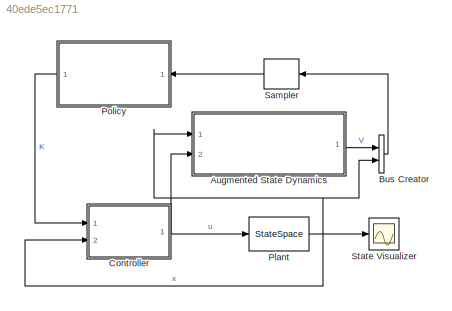
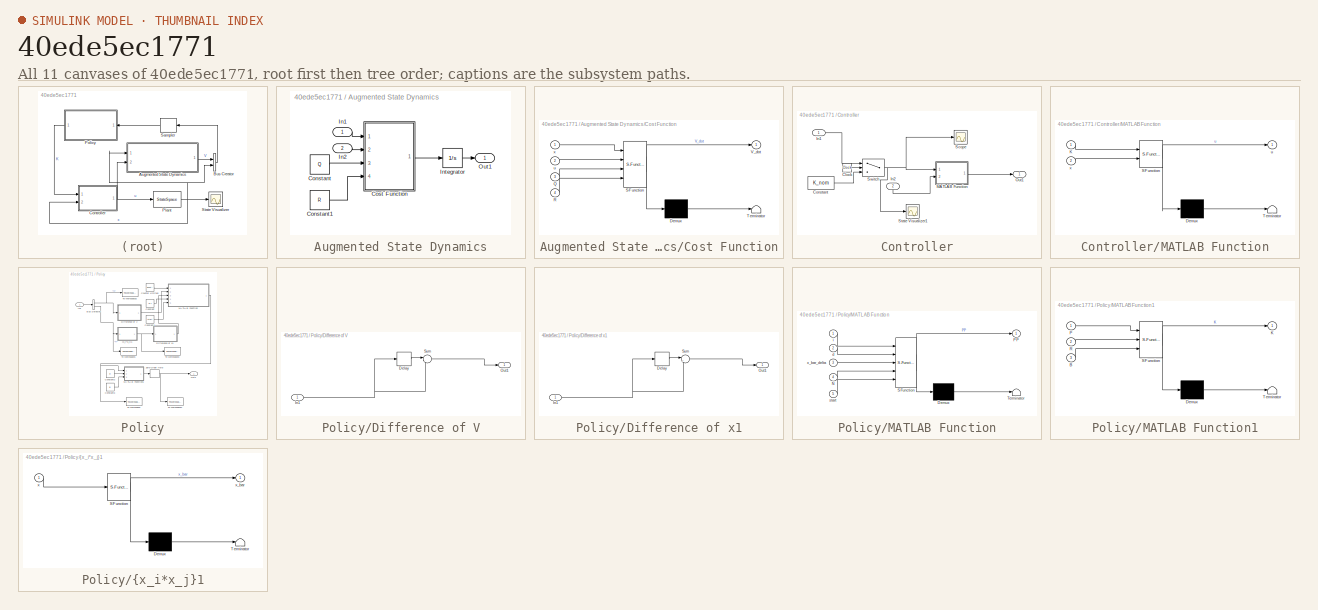
[diagram: thumbnail index - all 11 canvases of the model, root first then tree order]
MODEL slx_40ede5ec1771
KIND model
CONFIG InitFcn = initializer
BLOCK [SubSystem] Augmented State Dynamics
  Ports = [2, 1]
  RequestExecContextInheritance = off
BLOCK [Constant] Augmented State Dynamics/Constant
  Value = Q
BLOCK [Constant] Augmented State Dynamics/Constant1
  Value = R
BLOCK [SubSystem] Augmented State Dynamics/Cost Function
  ErrorFcn = Stateflow.Translate.translate
  PermitHierarchicalResolution = ExplicitOnly
  Ports = [4, 1]
  RequestExecContextInheritance = off
  SFBlockType = MATLAB Function
  TreatAsAtomicUnit = on
BLOCK [Demux] Augmented State Dynamics/Cost Function/ Demux 
  Outputs = 1
  Ports = [1, 1]
BLOCK [S-Function] Augmented State Dynamics/Cost Function/ SFunction 
  EnableBusSupport = on
  FunctionName = sf_sfun
  PortCounts = [4 2]
  Ports = [4, 2]
  Tag = Stateflow S-Function Vrabie 1
BLOCK [Terminator] Augmented State Dynamics/Cost Function/ Terminator 
BLOCK [Inport] Augmented State Dynamics/Cost Function/Q
  IconDisplay = Port number
  Port = 3
BLOCK [Inport] Augmented State Dynamics/Cost Function/R
  IconDisplay = Port number
  Port = 4
BLOCK [Outport] Augmented State Dynamics/Cost Function/V_dot
  IconDisplay = Port number
BLOCK [Inport] Augmented State Dynamics/Cost Function/u
  IconDisplay = Port number
  Port = 2
BLOCK [Inport] Augmented State Dynamics/Cost Function/x
  IconDisplay = Port number
BLOCK [Inport] Augmented State Dynamics/In1
  IconDisplay = Port number
BLOCK [Inport] Augmented State Dynamics/In2
  IconDisplay = Port number
  Port = 2
BLOCK [Integrator] Augmented State Dynamics/Integrator
  Ports = [1, 1]
BLOCK [Outport] Augmented State Dynamics/Out1
  IconDisplay = Port number
BLOCK [BusCreator] Bus Creator
  DisplayOption = bar
  Inputs = 2
  Ports = [2, 1]
BLOCK [SubSystem] Controller
  Ports = [2, 1]
  RequestExecContextInheritance = off
BLOCK [Clock] Controller/Clock
BLOCK [Constant] Controller/Constant
  Value = K_nom
BLOCK [Inport] Controller/In1
  IconDisplay = Port number
BLOCK [Inport] Controller/In2
  IconDisplay = Port number
  Port = 2
BLOCK [SubSystem] Controller/MATLAB Function
  ErrorFcn = Stateflow.Translate.translate
  PermitHierarchicalResolution = ExplicitOnly
  Ports = [2, 1]
  RequestExecContextInheritance = off
  SFBlockType = MATLAB Function
  TreatAsAtomicUnit = on
BLOCK [Demux] Controller/MATLAB Function/ Demux 
  Outputs = 1
  Ports = [1, 1]
BLOCK [S-Function] Controller/MATLAB Function/ SFunction 
  EnableBusSupport = on
  FunctionName = sf_sfun
  PortCounts = [2 2]
  Ports = [2, 2]
  Tag = Stateflow S-Function Vrabie 5
BLOCK [Terminator] Controller/MATLAB Function/ Terminator 
BLOCK [Inport] Controller/MATLAB Function/K
  IconDisplay = Port number
BLOCK [Outport] Controller/MATLAB Function/u
  IconDisplay = Port number
BLOCK [Inport] Controller/MATLAB Function/x
  IconDisplay = Port number
  Port = 2
BLOCK [Outport] Controller/Out1
  IconDisplay = Port number
BLOCK [Scope] Controller/Scope
  Floating = off
  NumInputPorts = 1
  Ports = [1]
  SaveName = ScopeData8
  ShowLegends = off
BLOCK [Scope] Controller/State Visualizer1
  DataFormat = StructureWithTime
  Floating = off
  MaxDataPoints = 50000
  NumInputPorts = 1
  Ports = [1]
  SaveName = xData2
  SaveToWorkspace = on
  ShowLegends = off
  TimeRange = 1
  YMax = 0.15
  YMin = -0.15
  ZoomMode = xonly
BLOCK [Switch] Controller/Switch
  Criteria = u2 > Threshold
  InputSameDT = off
  SaturateOnIntegerOverflow = off
  Threshold = N*T
BLOCK [StateSpace] Plant
  A = A
  B = B
  C = C
  D = D
  Ports = [1, 1]
  X0 = x0
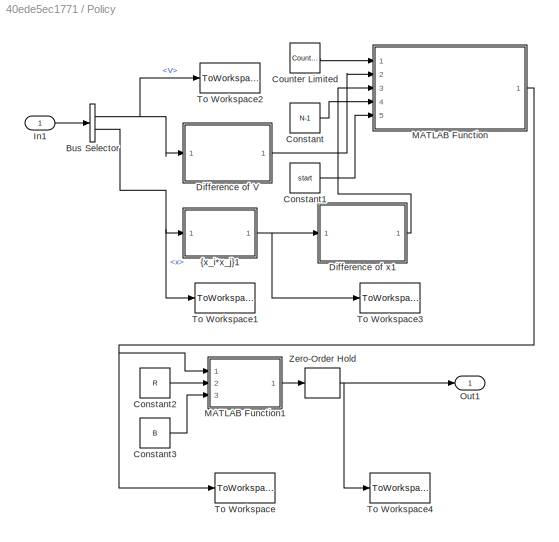
BLOCK [SubSystem] Policy
  Ports = [1, 1]
  RequestExecContextInheritance = off
BLOCK [BusSelector] Policy/Bus Selector
  OutputSignals = V,x
  Ports = [1, 2]
BLOCK [Constant] Policy/Constant
  Value = N-1
BLOCK [Constant] Policy/Constant1
  Value = start
BLOCK [Constant] Policy/Constant2
  Value = R
BLOCK [Constant] Policy/Constant3
  Value = B
BLOCK [Reference] Policy/Counter Limited  REF=simulink/Sources/Counter
Limited
  Ports = [0, 1]
  SourceBlock = simulink/Sources/Counter\nLimited
  SourceType = Counter Limited
  tsamp = -1
  uplimit = N-1
BLOCK [SubSystem] Policy/Difference of V
  Ports = [1, 1]
  RequestExecContextInheritance = off
BLOCK [Delay] Policy/Difference of V/Delay
  DelayLength = 1
  InitialCondition = 0
  InputPortMap = u0
  Ports = [1, 1]
BLOCK [Inport] Policy/Difference of V/In1
  IconDisplay = Port number
BLOCK [Outport] Policy/Difference of V/Out1
  IconDisplay = Port number
BLOCK [Sum] Policy/Difference of V/Sum
  IconShape = round
  InputSameDT = off
  Inputs = |-+
  OutDataTypeStr = Inherit: Inherit via internal rule
  Ports = [2, 1]
  SaturateOnIntegerOverflow = off
BLOCK [SubSystem] Policy/Difference of x1
  Ports = [1, 1]
  RequestExecContextInheritance = off
BLOCK [Delay] Policy/Difference of x1/Delay
  DelayLength = 1
  InitialCondition = 0
  InputPortMap = u0
  Ports = [1, 1]
BLOCK [Inport] Policy/Difference of x1/In1
  IconDisplay = Port number
BLOCK [Outport] Policy/Difference of x1/Out1
  IconDisplay = Port number
BLOCK [Sum] Policy/Difference of x1/Sum
  IconShape = round
  InputSameDT = off
  Inputs = |+-
  OutDataTypeStr = Inherit: Inherit via internal rule
  Ports = [2, 1]
  SaturateOnIntegerOverflow = off
BLOCK [Inport] Policy/In1
  IconDisplay = Port number
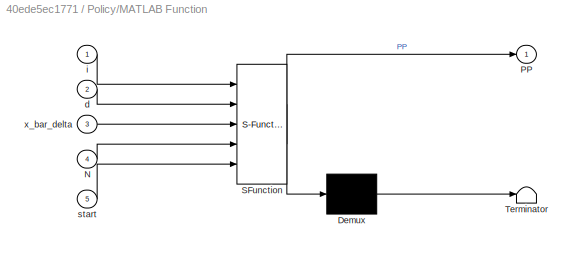
BLOCK [SubSystem] Policy/MATLAB Function
  ErrorFcn = Stateflow.Translate.translate
  PermitHierarchicalResolution = ExplicitOnly
  Ports = [5, 1]
  RequestExecContextInheritance = off
  SFBlockType = MATLAB Function
  TreatAsAtomicUnit = on
  VariantControl = Variant1
BLOCK [Demux] Policy/MATLAB Function/ Demux 
  Outputs = 1
  Ports = [1, 1]
BLOCK [S-Function] Policy/MATLAB Function/ SFunction 
  EnableBusSupport = on
  FunctionName = sf_sfun
  PortCounts = [5 2]
  Ports = [5, 2]
  Tag = Stateflow S-Function Vrabie 4
BLOCK [Terminator] Policy/MATLAB Function/ Terminator 
BLOCK [Inport] Policy/MATLAB Function/N
  IconDisplay = Port number
  Port = 4
BLOCK [Outport] Policy/MATLAB Function/PP
  IconDisplay = Port number
BLOCK [Inport] Policy/MATLAB Function/d
  IconDisplay = Port number
  Port = 2
BLOCK [Inport] Policy/MATLAB Function/i
  IconDisplay = Port number
BLOCK [Inport] Policy/MATLAB Function/start
  IconDisplay = Port number
  Port = 5
BLOCK [Inport] Policy/MATLAB Function/x_bar_delta
  IconDisplay = Port number
  Port = 3
BLOCK [SubSystem] Policy/MATLAB Function1
  ErrorFcn = Stateflow.Translate.translate
  PermitHierarchicalResolution = ExplicitOnly
  Ports = [3, 1]
  RequestExecContextInheritance = off
  SFBlockType = MATLAB Function
  TreatAsAtomicUnit = on
BLOCK [Demux] Policy/MATLAB Function1/ Demux 
  Outputs = 1
  Ports = [1, 1]
BLOCK [S-Function] Policy/MATLAB Function1/ SFunction 
  EnableBusSupport = on
  FunctionName = sf_sfun
  PortCounts = [3 2]
  Ports = [3, 2]
  Tag = Stateflow S-Function Vrabie 2
BLOCK [Terminator] Policy/MATLAB Function1/ Terminator 
BLOCK [Inport] Policy/MATLAB Function1/B
  IconDisplay = Port number
  Port = 3
BLOCK [Outport] Policy/MATLAB Function1/K
  IconDisplay = Port number
BLOCK [Inport] Policy/MATLAB Function1/P
  IconDisplay = Port number
BLOCK [Inport] Policy/MATLAB Function1/R
  IconDisplay = Port number
  Port = 2
BLOCK [Outport] Policy/Out1
  IconDisplay = Port number
BLOCK [ToWorkspace] Policy/To Workspace
  FixptAsFi = on
  MaxDataPoints = inf
  Ports = [1]
  SampleTime = -1
  Save2DSignal = 3-D array (concatenate along third dimension)
  SaveFormat = Timeseries
  VariableName = P_sim
BLOCK [ToWorkspace] Policy/To Workspace1
  FixptAsFi = on
  MaxDataPoints = inf
  Ports = [1]
  SampleTime = -1
  Save2DSignal = 3-D array (concatenate along third dimension)
  SaveFormat = Timeseries
  VariableName = x_sim
BLOCK [ToWorkspace] Policy/To Workspace2
  FixptAsFi = on
  MaxDataPoints = inf
  Ports = [1]
  SampleTime = -1
  Save2DSignal = 3-D array (concatenate along third dimension)
  SaveFormat = Timeseries
  VariableName = V_sim
BLOCK [ToWorkspace] Policy/To Workspace3
  FixptAsFi = on
  MaxDataPoints = inf
  Ports = [1]
  SampleTime = -1
  Save2DSignal = 3-D array (concatenate along third dimension)
  SaveFormat = Timeseries
  VariableName = x_bar_sim
BLOCK [ToWorkspace] Policy/To Workspace4
  FixptAsFi = on
  MaxDataPoints = inf
  Ports = [1]
  SampleTime = -1
  Save2DSignal = 3-D array (concatenate along third dimension)
  SaveFormat = Timeseries
  VariableName = K_sim
BLOCK [ZeroOrderHold] Policy/Zero-Order Hold
  SampleTime = N*T
BLOCK [SubSystem] Policy/{x_i*x_j}1
  ErrorFcn = Stateflow.Translate.translate
  PermitHierarchicalResolution = ExplicitOnly
  Ports = [1, 1]
  RequestExecContextInheritance = off
  SFBlockType = MATLAB Function
  TreatAsAtomicUnit = on
BLOCK [Demux] Policy/{x_i*x_j}1/ Demux 
  Outputs = 1
  Ports = [1, 1]
BLOCK [S-Function] Policy/{x_i*x_j}1/ SFunction 
  EnableBusSupport = on
  FunctionName = sf_sfun
  PortCounts = [1 2]
  Ports = [1, 2]
  Tag = Stateflow S-Function Vrabie 3
BLOCK [Terminator] Policy/{x_i*x_j}1/ Terminator 
BLOCK [Inport] Policy/{x_i*x_j}1/x
  IconDisplay = Port number
BLOCK [Outport] Policy/{x_i*x_j}1/x_bar
  IconDisplay = Port number
BLOCK [ZeroOrderHold] Sampler
  SampleTime = T
BLOCK [Scope] State Visualizer
  Floating = off
  MaxDataPoints = 50000
  NumInputPorts = 1
  Ports = [1]
  SaveName = xData
  SaveToWorkspace = on
  ShowLegends = off
  TimeRange = 1
  YMax = 0.15
  YMin = -0.15
  ZoomMode = xonly
LINE Augmented State Dynamics/Constant1:1 -> Augmented State Dynamics/Cost Function:4
LINE Augmented State Dynamics/Constant:1 -> Augmented State Dynamics/Cost Function:3
LINE Augmented State Dynamics/Cost Function:1 -> Augmented State Dynamics/Integrator:1
LINE Augmented State Dynamics/In1:1 -> Augmented State Dynamics/Cost Function:1
LINE Augmented State Dynamics/In2:1 -> Augmented State Dynamics/Cost Function:2
LINE Augmented State Dynamics/Integrator:1 -> Augmented State Dynamics/Out1:1
LINE Augmented State Dynamics:1 -> Bus Creator:1
LINE Bus Creator:1 -> Sampler:1
LINE Controller/Clock:1 -> Controller/Switch:2
LINE Controller/Constant:1 -> Controller/Switch:3
LINE Controller/In1:1 -> Controller/Switch:1
LINE Controller/In2:1 -> Controller/MATLAB Function:2
LINE Controller/MATLAB Function:1 -> Controller/Out1:1
NET Controller/Switch:1 -> Controller/MATLAB Function:1, Controller/Scope:1, Controller/State Visualizer1:1
NET Controller:1 -> Augmented State Dynamics:2, Plant:1
NET Plant:1 -> Augmented State Dynamics:1, Bus Creator:2, Controller:2, State Visualizer:1
NET Policy/Bus Selector:1 -> Policy/Difference of V:1, Policy/To Workspace2:1
NET Policy/Bus Selector:2 -> Policy/To Workspace1:1, Policy/{x_i*x_j}1:1
LINE Policy/Constant1:1 -> Policy/MATLAB Function:5
LINE Policy/Constant2:1 -> Policy/MATLAB Function1:2
LINE Policy/Constant3:1 -> Policy/MATLAB Function1:3
LINE Policy/Constant:1 -> Policy/MATLAB Function:4
LINE Policy/Counter Limited:1 -> Policy/MATLAB Function:1
LINE Policy/Difference of V/Delay:1 -> Policy/Difference of V/Sum:1
NET Policy/Difference of V/In1:1 -> Policy/Difference of V/Delay:1, Policy/Difference of V/Sum:2
LINE Policy/Difference of V/Sum:1 -> Policy/Difference of V/Out1:1
LINE Policy/Difference of V:1 -> Policy/MATLAB Function:2
LINE Policy/Difference of x1/Delay:1 -> Policy/Difference of x1/Sum:1
NET Policy/Difference of x1/In1:1 -> Policy/Difference of x1/Delay:1, Policy/Difference of x1/Sum:2
LINE Policy/Difference of x1/Sum:1 -> Policy/Difference of x1/Out1:1
LINE Policy/Difference of x1:1 -> Policy/MATLAB Function:3
LINE Policy/In1:1 -> Policy/Bus Selector:1
LINE Policy/MATLAB Function1:1 -> Policy/Zero-Order Hold:1
NET Policy/MATLAB Function:1 -> Policy/MATLAB Function1:1, Policy/To Workspace:1
NET Policy/Zero-Order Hold:1 -> Policy/Out1:1, Policy/To Workspace4:1
NET Policy/{x_i*x_j}1:1 -> Policy/Difference of x1:1, Policy/To Workspace3:1
LINE Policy:1 -> Controller:1
LINE Sampler:1 -> Policy:1
note: NET lines group one-source signal fan-out (src -> all destinations, sorted); 1:1 wires keep LINE
CHART Augmented State Dynamics/Cost Function states=1 transitions=1
  STATE_LABEL 'eML_blk_kernel()'
  STATE_LABEL "SCRIPT:\nfunction V_dot = fcn(x, u, Q, R)\n%#codegen\n\nV_dot = x'*Q*x + u'*R*u;"
CHART Policy/MATLAB Function1 states=1 transitions=1
  STATE_LABEL 'eML_blk_kernel()'
  STATE_LABEL "SCRIPT:\nfunction K = fcn(P, R, B)\nK = R\\B'*P;"
CHART Policy/{x_i*x_j}1 states=1 transitions=1
  STATE_LABEL 'eML_blk_kernel()'
  STATE_LABEL 'SCRIPT:\nfunction x_bar = fcn(x)\n\nn = size(x,1);\nx_bar = zeros(n*(n+1)/2, 1);\n\ncount = 1;\nfor i=1:n\n    for j=i:n\n        x_bar(count) = x(i)*x(j);\n        count = count + 1;\n    end\nend\n'
CHART Policy/MATLAB Function states=1 transitions=1
  STATE_LABEL 'eML_blk_kernel()'
  STATE_LABEL "SCRIPT:\nfunction PP = fcn(i, d, x_bar_delta, N, start)\npersistent X Y P p_1 has_converged\nif N > 200\n%     N = 200;\n    error('N is too big');\nend\nif start < 1\n    error('start cannot be less than 1');\nend\nif N-start <10\n    error('(N - start) must be greater than or equal to 10');\nend\nif isempty(X)\n    X = zeros(10, N-start); \nend\nif isempty(Y)\n    Y = zeros(1, N-start);\nend\nif isempty(P)\n    P =...<+601ch>"
CHART Controller/MATLAB Function states=1 transitions=1
  STATE_LABEL 'eML_blk_kernel()'
  STATE_LABEL "SCRIPT:\nfunction u = fcn(K, x)\n\nu = -K'*x;"
